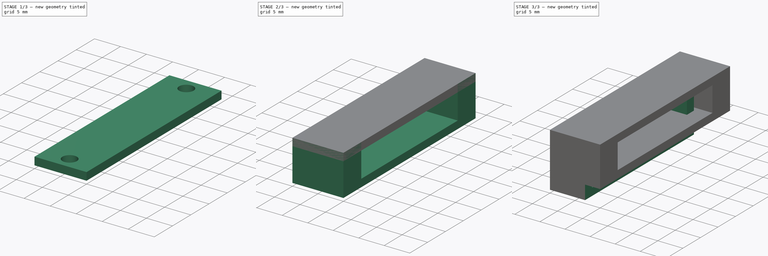
[diagram: build sequence overview — one tinted view per stage of 3, left to right]
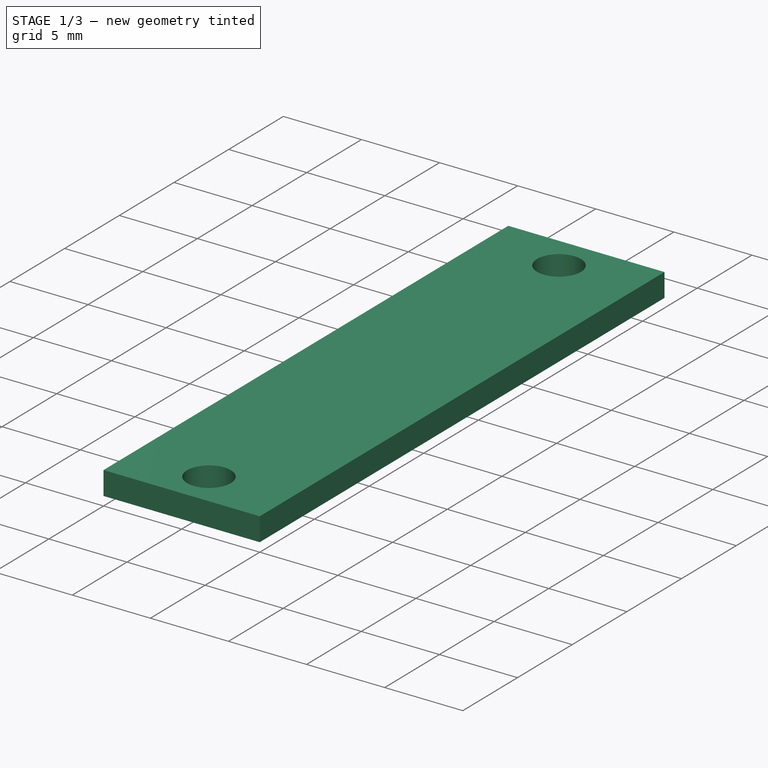
[diagram: stage 1 of 3 — iso view after this stage's code; geometry added in this stage tinted green]
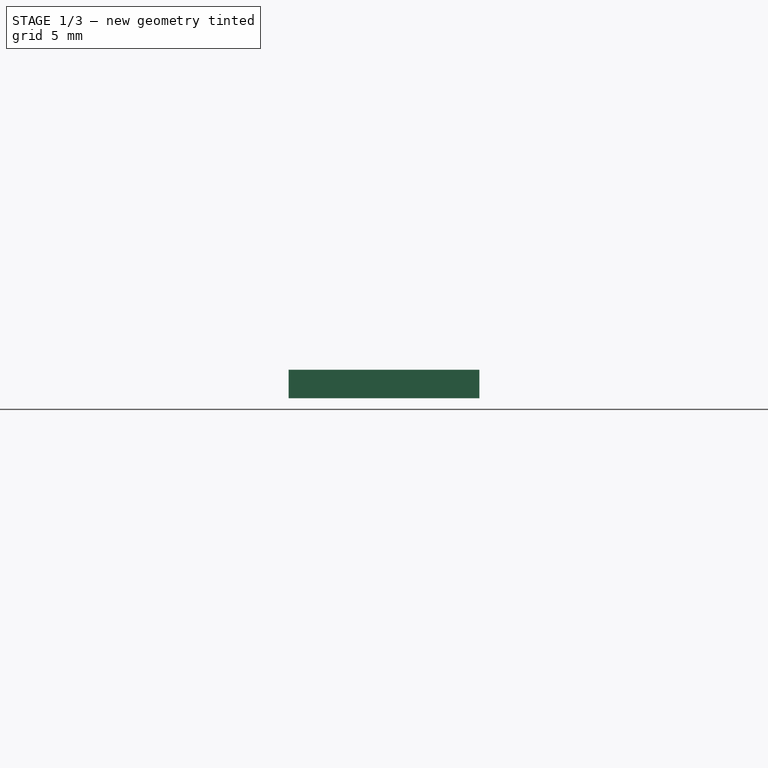
[diagram: stage 1 of 3 — front view after this stage's code; geometry added in this stage tinted green]
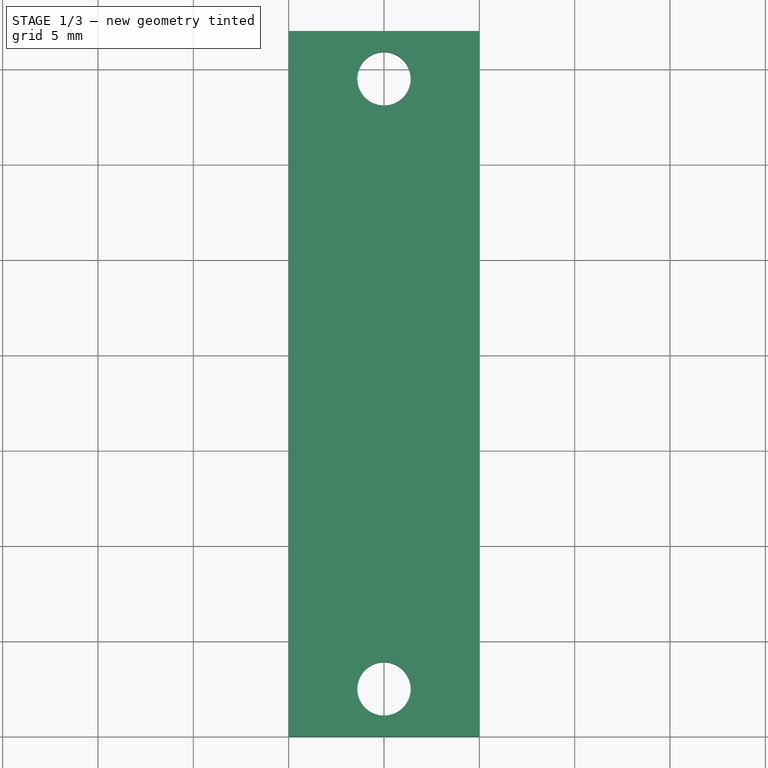
[diagram: stage 1 of 3 — top view after this stage's code; geometry added in this stage tinted green]
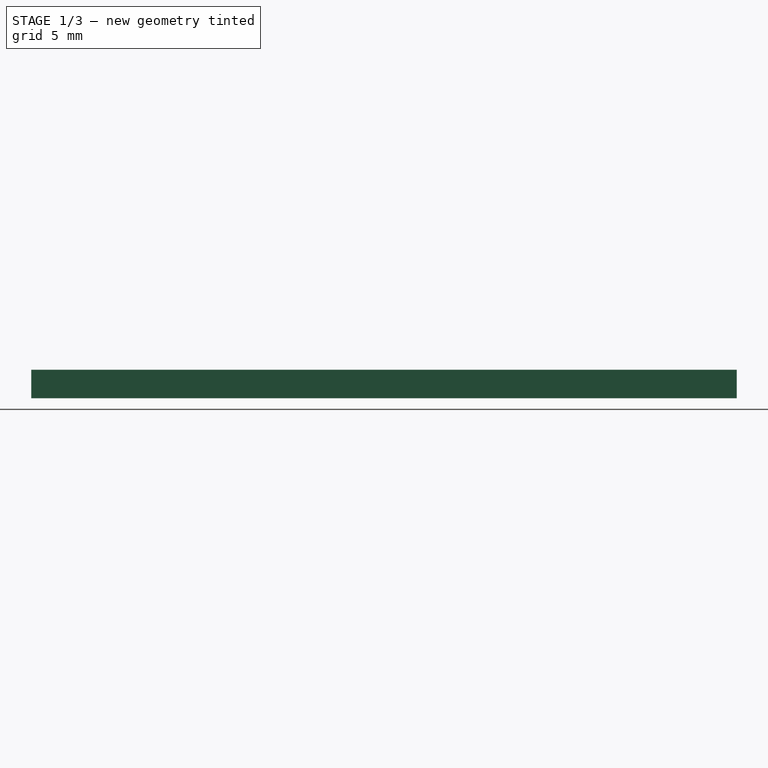
[diagram: stage 1 of 3 — right view after this stage's code; geometry added in this stage tinted green]
FCSTD DOCUMENT  (FreeCAD 0.20R29410 (Git))
Label: heating-controller-integration
License: All rights reserved
LicenseURL: http://en.wikipedia.org/wiki/All_rights_reserved
objects: Part::Feature×22, App::Link×10, Sketcher::SketchObject×8, App::Part×7, PartDesign::Pad×3, PartDesign::Body×3, PartDesign::Pocket×2, PartDesign::CoordinateSystem×1
note: 44 computed .brp shape members not serialized (recipe doc carries the construction recipe); baked Part::Feature solids carry a one-line shape summary decoded from their .brp

FEATURE [PartDesign::Body] Body001  label="Support_PCB"
  Group = -> [Sketch003,Pad001,Sketch004,Pocket]
  Origin = -> Origin014
  Placement = pos=(40.3,-81.25,49.4) rot=(0,0,1;0rad)
  Tip = -> Pocket
FEATURE [Sketcher::SketchObject] Sketch005
  FullyConstrained = true
  MapMode = 5
  Placement = pos=(0,0,0) rot=(0.57735,0.57735,0.57735;2.0944rad)
  Support = -> [YZ_Plane015]
  sketch-geometry (6):
    g0: LineSegment StartX=0 StartY=0 StartZ=0 EndX=5 EndY=0 EndZ=0
    g1: LineSegment StartX=5 StartY=0 StartZ=0 EndX=32 EndY=0 EndZ=0
    g2: LineSegment StartX=32 StartY=0 StartZ=0 EndX=37 EndY=0 EndZ=0
    g3: LineSegment StartX=37 StartY=0 StartZ=0 EndX=37 EndY=-1.5 EndZ=0
    g4: LineSegment StartX=37 StartY=-1.5 StartZ=0 EndX=0 EndY=-1.5 EndZ=0
    g5: LineSegment StartX=0 StartY=-1.5 StartZ=0 EndX=0 EndY=0 EndZ=0
  constraints (17):
    c: Coincident(g-1,g0)
    c: PointOnObject(g0,g-1)
    c: Horizontal(g1)
    c: PointOnObject(g2,g-1)
    c: Coincident(g2,g3)
    c: Vertical(g3)
    c: Coincident(g3,g4)
    c: PointOnObject(g4,g-2)
    c: Horizontal(g4)
    c: Coincident(g4,g5)
    c: Coincident(g5,g0)
    c: Equal(g0,g2)
    c: DistanceX(g0,g0) = 5
    c: DistanceX(g1,g1) = 27
    c: DistanceY(g4,g1) = 1.5
    c: Coincident(g1,g2)
    c: Coincident(g0,g1)
FEATURE [PartDesign::Pad] Pad002
  Direction = (1,-2e-16,3e-16)
  Length = 10
  Length2 = 10
  Placement = pos=(0,0,0) rot=(0.57735,0.57735,0.57735;2.0944rad)
  Profile = -> Sketch005
  ReferenceAxis = -> Sketch005 [N_Axis]
  Type = 0
FEATURE [Sketcher::SketchObject] Sketch006
  ExternalGeometry = -> [Pad002]
  FullyConstrained = true
  MapMode = 5
  Placement = pos=(6e-16,-8e-16,-1.5) rot=(0.707107,0.707107,0;3.14159rad)
  Support = -> [Pad002]
  sketch-geometry (4):
    g0: Circle CenterX=2.5 CenterY=5 CenterZ=0 NormalX=0 NormalY=0 NormalZ=1 AngleXU=0 Radius=1.4
    g1: Circle CenterX=34.5 CenterY=5 CenterZ=0 NormalX=0 NormalY=0 NormalZ=1 AngleXU=0 Radius=1.4
    g2: LineSegment StartX=34.5 StartY=5 StartZ=0 EndX=37 EndY=0 EndZ=0
    g3: LineSegment StartX=34.5 StartY=5 StartZ=0 EndX=37 EndY=10 EndZ=0
  constraints (10):
    c: Horizontal(g0,g1)
    c: Equal(g0,g1)
    c: Diameter(g0) = 2.8
    c: DistanceX(g-1,g0) = 2.5
    c: DistanceX(g1,g-3) = 2.5
    c: Coincident(g2,g1)
    c: Coincident(g2,g-3)
    c: Coincident(g3,g1)
    c: Coincident(g3,g-3)
    c: Equal(g3,g2)
FEATURE [PartDesign::Pocket] Pocket001
  BaseFeature = -> Pad002
  Direction = (-4e-16,6e-16,1)
  Length = 5
  Length2 = 5
  Placement = pos=(0,0,0) rot=(0.57735,0.57735,0.57735;2.0944rad)
  Profile = -> Sketch006
  ReferenceAxis = -> Sketch006 [N_Axis]
  Type = 1
FEATURE [PartDesign::Body] Body002  label="Support_PCB_top"
  Group = -> [Sketch005,Pad002,Sketch006,Pocket001]
  Origin = -> Origin015
  Placement = pos=(40.3,-81.25,38.35) rot=(0,0,1;0rad)
  Tip = -> Pocket001
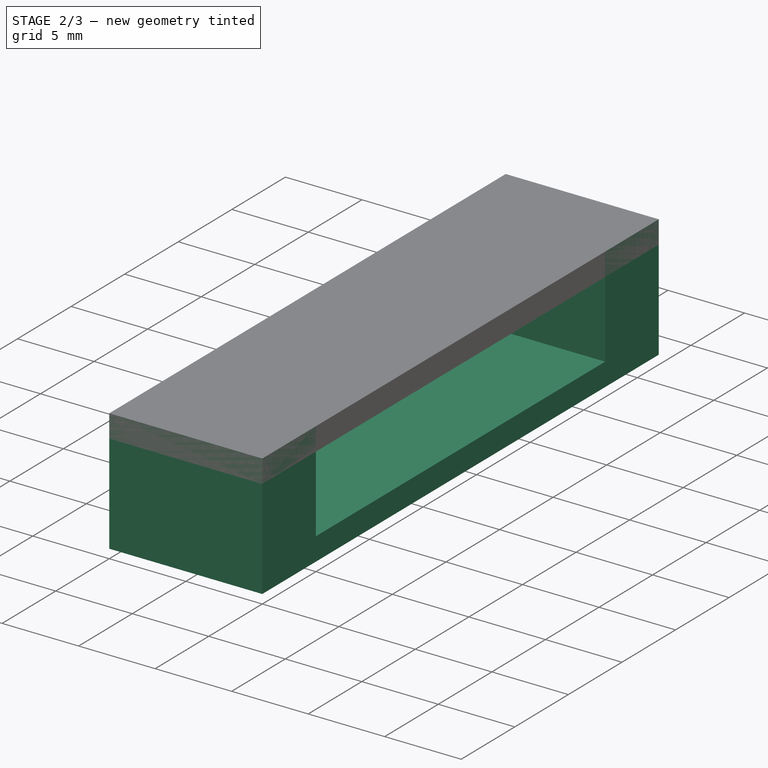
[diagram: stage 2 of 3 — iso view after this stage's code; geometry added in this stage tinted green]
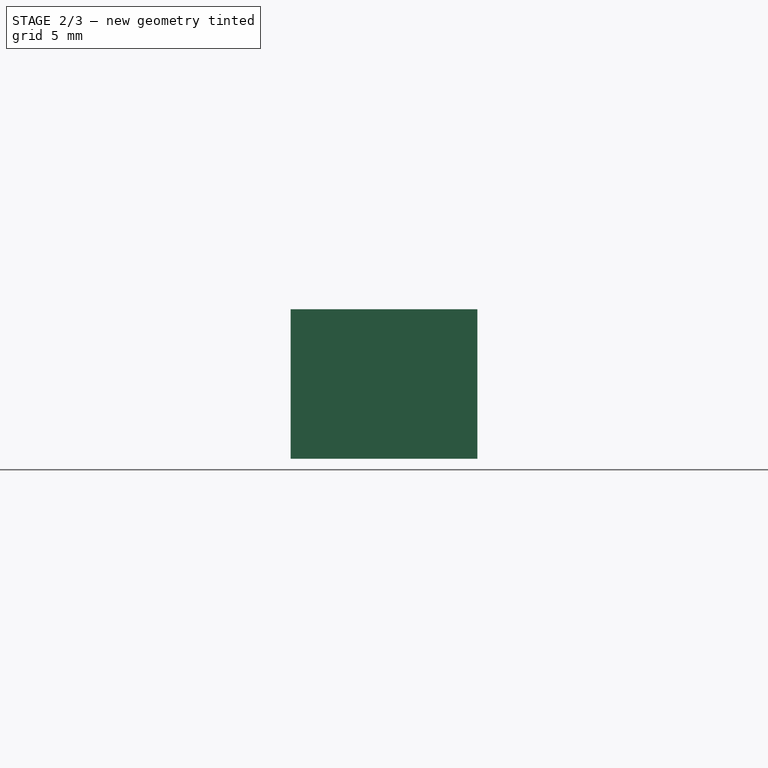
[diagram: stage 2 of 3 — front view after this stage's code; geometry added in this stage tinted green]
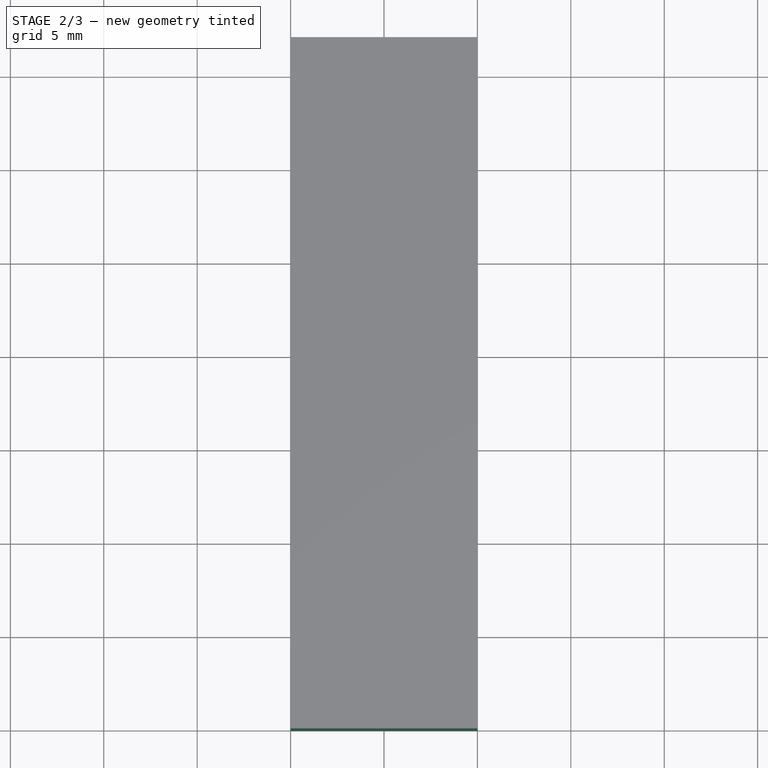
[diagram: stage 2 of 3 — top view after this stage's code; geometry added in this stage tinted green]
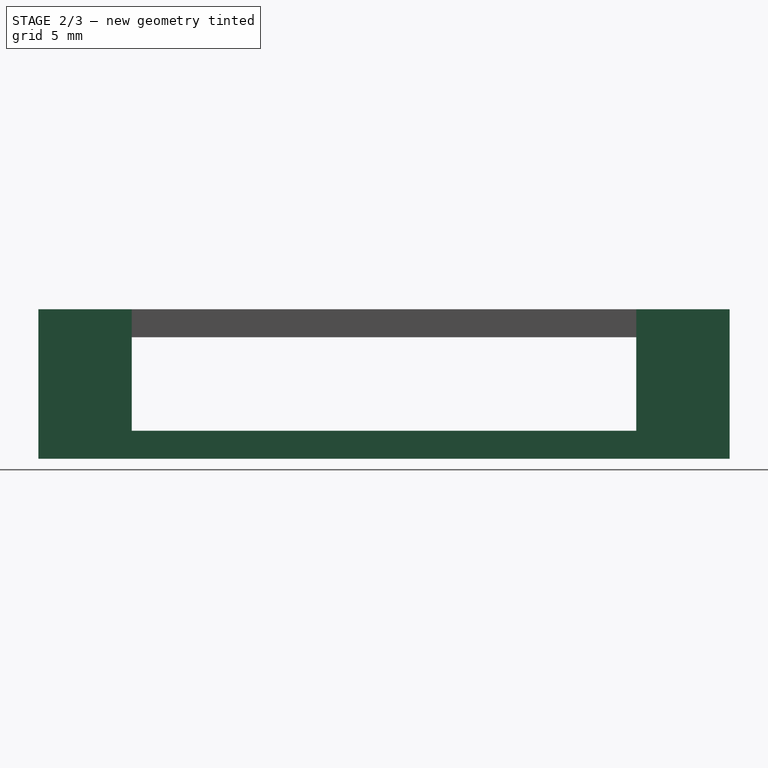
[diagram: stage 2 of 3 — right view after this stage's code; geometry added in this stage tinted green]
FEATURE [PartDesign::Body] Body  label="Support_antenna"
  Group = -> [Sketch002,Pad]
  Origin = -> Origin013
  Placement = pos=(85.4,-77.9,49.4) rot=(0,0,1;0rad)
  Tip = -> Pad
FEATURE [Sketcher::SketchObject] Sketch003
  FullyConstrained = true
  MapMode = 5
  Placement = pos=(0,0,0) rot=(0.57735,0.57735,0.57735;2.0944rad)
  Support = -> [YZ_Plane014]
  sketch-geometry (8):
    g0: LineSegment StartX=0 StartY=0 StartZ=0 EndX=5 EndY=0 EndZ=0
    g1: LineSegment StartX=5 StartY=0 StartZ=0 EndX=5 EndY=-6.5 EndZ=0
    g2: LineSegment StartX=5 StartY=-6.5 StartZ=0 EndX=32 EndY=-6.5 EndZ=0
    g3: LineSegment StartX=32 StartY=-6.5 StartZ=0 EndX=32 EndY=0 EndZ=0
    g4: LineSegment StartX=32 StartY=0 StartZ=0 EndX=37 EndY=0 EndZ=0
    g5: LineSegment StartX=37 StartY=0 StartZ=0 EndX=37 EndY=-8 EndZ=0
    g6: LineSegment StartX=37 StartY=-8 StartZ=0 EndX=0 EndY=-8 EndZ=0
    g7: LineSegment StartX=0 StartY=-8 StartZ=0 EndX=0 EndY=0 EndZ=0
  constraints (23):
    c: Coincident(g-1,g0)
    c: PointOnObject(g0,g-1)
    c: Coincident(g0,g1)
    c: Vertical(g1)
    c: Coincident(g1,g2)
    c: Horizontal(g2)
    c: Coincident(g2,g3)
    c: PointOnObject(g3,g-1)
    c: Vertical(g3)
    c: Coincident(g3,g4)
    c: PointOnObject(g4,g-1)
    c: Coincident(g4,g5)
    c: Vertical(g5)
    c: Coincident(g5,g6)
    c: PointOnObject(g6,g-2)
    c: Horizontal(g6)
    c: Coincident(g6,g7)
    c: Coincident(g7,g0)
    c: Equal(g0,g4)
    c: DistanceX(g0,g0) = 5
    c: DistanceX(g2,g2) = 27
    c: DistanceY(g3,g3) = 6.5
    c: DistanceY(g6,g1) = 1.5
FEATURE [PartDesign::Pad] Pad001
  Direction = (1,-2e-16,3e-16)
  Length = 10
  Length2 = 10
  Placement = pos=(0,0,0) rot=(0.57735,0.57735,0.57735;2.0944rad)
  Profile = -> Sketch003
  ReferenceAxis = -> Sketch003 [N_Axis]
  Type = 0
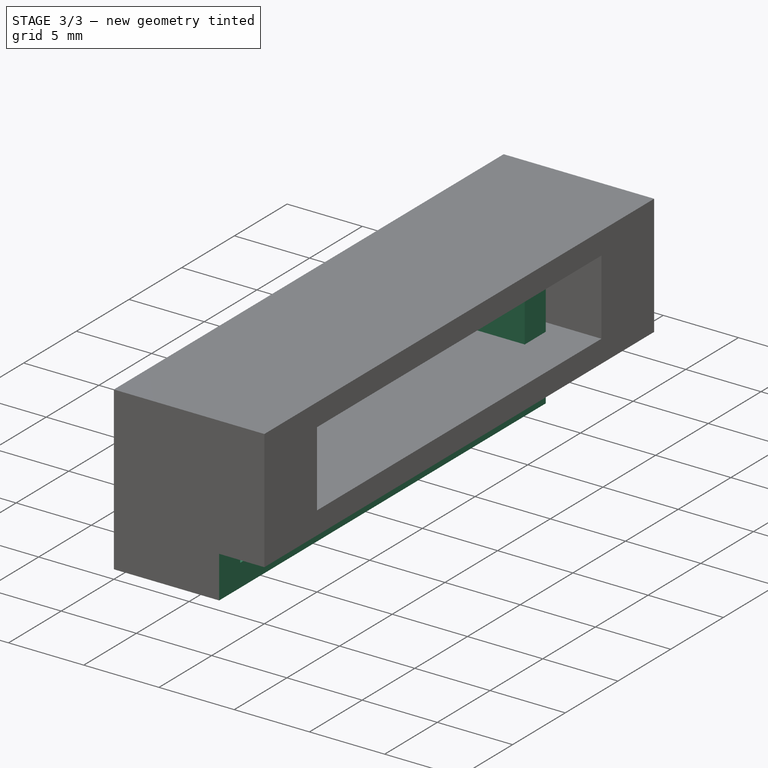
[diagram: stage 3 of 3 — iso view after this stage's code; geometry added in this stage tinted green]
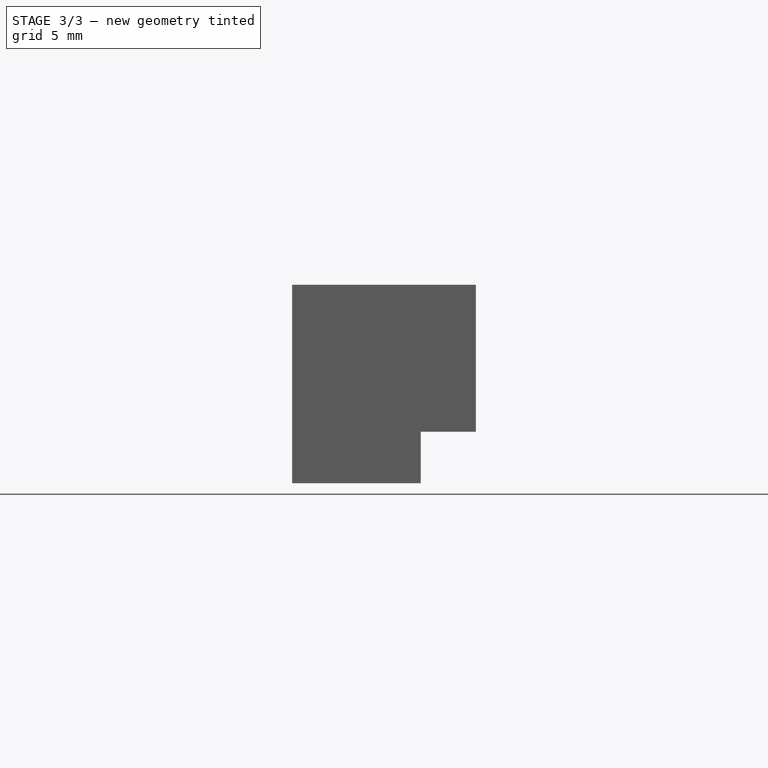
[diagram: stage 3 of 3 — front view after this stage's code; geometry added in this stage tinted green]
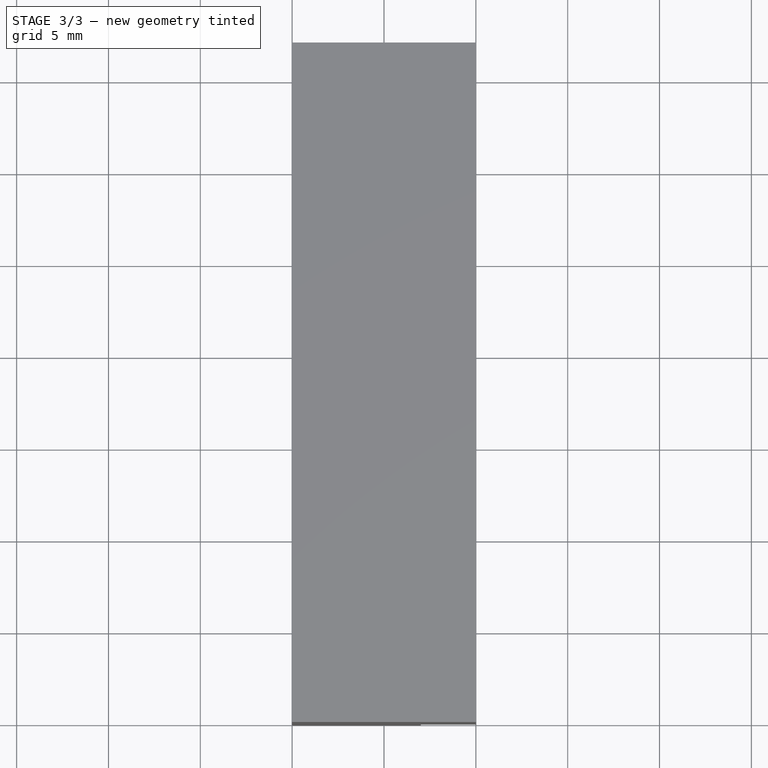
[diagram: stage 3 of 3 — top view after this stage's code; geometry added in this stage tinted green]
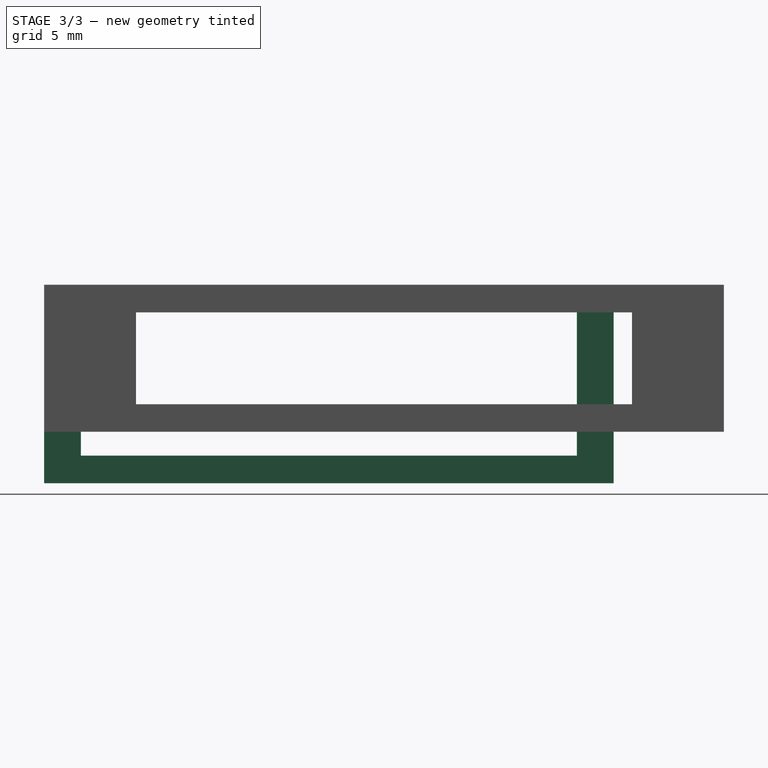
[diagram: stage 3 of 3 — right view after this stage's code; geometry added in this stage tinted green]
FEATURE [Part::Feature] Part__Feature  label="Default"
  shape: bbox 90.2 x 87.6 x 65.4 mm, 880 faces, 4 solids (baked)
FEATURE [App::Part] _e37cdd492b0313c57856d0c2a801cdc20221213_1_148fffv  label="enclosure"
  Group = -> [Part__Feature]
  Origin = -> Origin004
  Placement = pos=(61,-62.6,0) rot=(-0.707107,-0.707107,0;3.14159rad)
  expr: .Placement.Rotation.Angle = 180
FEATURE [Part::Feature] Part__Feature001  label="NFP190B-01A_9_2_1"
  shape: bbox 25.95 x 49.87 x 1.53 mm, 11 faces (baked)
FEATURE [Part::Feature] Part__Feature002  label="S-WATCH_TOUCH-SCREEN_15_1_1"
  shape: bbox 32.02 x 55.03 x 1.401 mm, 32 faces (baked)
FEATURE [App::Part] S_WATCH_20220510_ASM_11_ASM_1_A_ASM  label="S-WATCH_20220510_ASM_11_ASM_1_A_ASM"
  Group = -> [Part__Feature001,Part__Feature002]
  Origin = -> Origin008
FEATURE [App::Part] S_WATCH_20220510_ASM_ASM_1_ASM__ASM  label="S-WATCH_20220510_ASM_ASM_1_ASM__ASM"
  Group = -> [S_WATCH_20220510_ASM_11_ASM_1_A_ASM]
  Origin = -> Origin009
  Placement = pos=(59.6,-62.2,49.6) rot=(0,0,1;1.5708rad)
FEATURE [Part::Feature] Part__Feature003  label="T_DISPLAY_S3"
  Placement = pos=(-17.6,-155.3,44.47) rot=(0.707107,0.707107,0;3.14159rad)
  shape: bbox 61.98 x 26.09 x 7.863 mm, 798 faces (baked)
FEATURE [Sketcher::SketchObject] Sketch  label="Edge.Cuts_Poly_0"
  FullyConstrained = false
  Placement = pos=(0,0,0) rot=(0,0,1;3.14159rad)
  sketch-geometry (6):
    g0: LineSegment StartX=-66.8 StartY=69.1 StartZ=0 EndX=-66.8 EndY=95.411 EndZ=0
    g1: LineSegment StartX=-66.8 StartY=95.411 StartZ=0 EndX=-65.15 EndY=95.411 EndZ=0
    g2: LineSegment StartX=-65.15 StartY=95.411 StartZ=0 EndX=-65.15 EndY=71.1286 EndZ=0
    g3: LineSegment StartX=-65.15 StartY=71.1286 StartZ=0 EndX=-45.4992 EndY=71.1286 EndZ=0
    g4: LineSegment StartX=-45.4992 StartY=71.1286 StartZ=0 EndX=-45.4992 EndY=69.1 EndZ=0
    g5: LineSegment StartX=-45.4992 StartY=69.1 StartZ=0 EndX=-66.8 EndY=69.1 EndZ=0
FEATURE [Sketcher::SketchObject] Sketch001  label="Edge.Cuts_Poly_1"
  FullyConstrained = false
  Placement = pos=(0,0,0) rot=(0,0,1;3.14159rad)
  sketch-geometry (6):
    g0: LineSegment StartX=-44.15 StartY=44.1 StartZ=0 EndX=-44.15 EndY=60.1 EndZ=0
    g1: LineSegment StartX=-44.15 StartY=60.1 StartZ=0 EndX=-42.15 EndY=60.1 EndZ=0
    g2: LineSegment StartX=-42.15 StartY=60.1 StartZ=0 EndX=-42.15 EndY=46.1 EndZ=0
    g3: LineSegment StartX=-42.15 StartY=46.1 StartZ=0 EndX=-23.15 EndY=46.1 EndZ=0
    g4: LineSegment StartX=-23.15 StartY=46.1 StartZ=0 EndX=-23.15 EndY=44.1 EndZ=0
    g5: LineSegment StartX=-23.15 StartY=44.1 StartZ=0 EndX=-44.15 EndY=44.1 EndZ=0
FEATURE [PartDesign::CoordinateSystem] Local_CS_2b62
  AttacherType = Attacher::AttachEngine3D
  MapMode = 2
  Support = -> [X_Axis010]
FEATURE [Part::Feature] Pcb_2b62
  shape: bbox 81.85 x 85.9 x 1.6 mm, 78 faces (baked)
FEATURE [Sketcher::SketchObject] PCB_Sketch_2b62
  FullyConstrained = false
  sketch-geometry (20):
    g0: LineSegment StartX=20.15 StartY=-20.1 StartZ=0 EndX=102 EndY=-20.1 EndZ=0
    g1: LineSegment StartX=102 StartY=-20.1 StartZ=0 EndX=102 EndY=-106 EndZ=0
    g2: LineSegment StartX=102 StartY=-106 StartZ=0 EndX=20.15 EndY=-106 EndZ=0
    g3: LineSegment StartX=20.15 StartY=-106 StartZ=0 EndX=20.15 EndY=-20.1 EndZ=0
    g4: LineSegment StartX=66.8 StartY=-69.1 StartZ=0 EndX=66.8 EndY=-95.411 EndZ=0
    g5: LineSegment StartX=66.8 StartY=-95.411 StartZ=0 EndX=65.15 EndY=-95.411 EndZ=0
    g6: LineSegment StartX=65.15 StartY=-95.411 StartZ=0 EndX=65.15 EndY=-71.1286 EndZ=0
    g7: LineSegment StartX=65.15 StartY=-71.1286 StartZ=0 EndX=45.4992 EndY=-71.1286 EndZ=0
    g8: LineSegment StartX=45.4992 StartY=-71.1286 StartZ=0 EndX=45.4992 EndY=-69.1 EndZ=0
    g9: LineSegment StartX=45.4992 StartY=-69.1 StartZ=0 EndX=66.8 EndY=-69.1 EndZ=0
    g10: LineSegment StartX=44.15 StartY=-44.1 StartZ=0 EndX=44.15 EndY=-60.1 EndZ=0
    g11: LineSegment StartX=44.15 StartY=-60.1 StartZ=0 EndX=42.15 EndY=-60.1 EndZ=0
    g12: LineSegment StartX=42.15 StartY=-60.1 StartZ=0 EndX=42.15 EndY=-46.1 EndZ=0
    g13: LineSegment StartX=42.15 StartY=-46.1 StartZ=0 EndX=23.15 EndY=-46.1 EndZ=0
    g14: LineSegment StartX=23.15 StartY=-46.1 StartZ=0 EndX=23.15 EndY=-44.1 EndZ=0
    g15: LineSegment StartX=23.15 StartY=-44.1 StartZ=0 EndX=44.15 EndY=-44.1 EndZ=0
    g16: Circle CenterX=28 CenterY=-37.7 CenterZ=0 NormalX=0 NormalY=0 NormalZ=1 AngleXU=0 Radius=1.3
    g17: Circle CenterX=28 CenterY=-87.9 CenterZ=0 NormalX=0 NormalY=0 NormalZ=1 AngleXU=0 Radius=1.3
    g18: Circle CenterX=94.2 CenterY=-37.7 CenterZ=0 NormalX=0 NormalY=0 NormalZ=1 AngleXU=0 Radius=1.3
    g19: Circle CenterX=94.2 CenterY=-87.7148 CenterZ=0 NormalX=0 NormalY=0 NormalZ=1 AngleXU=0 Radius=1.3
  constraints (16):
    c: Coincident(g2,g3)
    c: Coincident(g0,g3)
    c: Coincident(g13,g14)
    c: Coincident(g14,g15)
    c: Coincident(g11,g12)
    c: Coincident(g12,g13)
    c: Coincident(g10,g11)
    c: Coincident(g10,g15)
    c: Coincident(g7,g8)
    c: Coincident(g8,g9)
    c: Coincident(g5,g6)
    c: Coincident(g6,g7)
    c: Coincident(g4,g5)
    c: Coincident(g4,g9)
    c: Coincident(g1,g2)
    c: Coincident(g0,g1)
FEATURE [App::Part] Board_Geoms_2b62
  Group = -> [Pcb_2b62,PCB_Sketch_2b62]
  Origin = -> Origin
FEATURE [Part::Feature] Shape  label="R6_R_0603_1608Metric_a486fa5abdc1"
  Placement = pos=(47.675,-28.95,0) rot=(0,0,1;0rad)
  shape: bbox 1.6 x 0.8 x 0.45 mm, 26 faces (baked)
FEATURE [Part::Feature] Shape001  label="PS1_Pad001_cc960fdde001"
  Placement = pos=(35.9742,-47.41,0) rot=(0,0,1;0rad)
  shape: bbox 25.4 x 25.4 x 21.7 mm, 18 faces (baked)
FEATURE [Part::Feature] Shape002  label="C3_C_Radial_D100mm_H125mm_P500mm_71014cd09946"
  Placement = pos=(67.9782,-59.2414,0) rot=(0,0,-1;1.5708rad)
  shape: bbox 13.66 x 12.88 x 14.5 mm, 32 faces (baked)
FEATURE [App::Link] R6_R_0603_1608Metric_a486fa5abdc1_ln_  label="R9_R_0603_1608Metric_5393dd63167e"
  LinkPlacement = pos=(93.4,-59.1,0) rot=(0,0,1;3.14159rad)
  LinkedObject = -> Shape
  Placement = pos=(93.4,-59.1,0) rot=(0,0,1;3.14159rad)
FEATURE [App::Link] R6_R_0603_1608Metric_a486fa5abdc1_ln_001  label="R4_R_0603_1608Metric_e644c34d807d"
  LinkPlacement = pos=(47.675,-32.05,0) rot=(0,0,1;0rad)
  LinkedObject = -> Shape
  Placement = pos=(47.675,-32.05,0) rot=(0,0,1;0rad)
FEATURE [App::Link] R6_R_0603_1608Metric_a486fa5abdc1_ln_002  label="R7_R_0603_1608Metric_b2ae3c32dab1"
  LinkPlacement = pos=(85.775,-61,0) rot=(0,0,1;3.14159rad)
  LinkedObject = -> Shape
  Placement = pos=(85.775,-61,0) rot=(0,0,1;3.14159rad)
FEATURE [Part::Feature] Shape003  label="RV1_RV_Disc_D12mm_W75mm_P75mm_a3a09b8d229c"
  Placement = pos=(44.4486,-79.6564,0) rot=(0,0,1;3.14159rad)
  shape: bbox 12 x 7.5 x 15.03 mm, 11 faces (baked)
FEATURE [App::Link] R6_R_0603_1608Metric_a486fa5abdc1_ln_003  label="R10_R_0603_1608Metric_937b6face6c1"
  LinkPlacement = pos=(78.15,-71.1,0) rot=(0,0,-1;1.5708rad)
  LinkedObject = -> Shape
  Placement = pos=(78.15,-71.1,0) rot=(0,0,-1;1.5708rad)
FEATURE [Part::Feature] Shape004  label="J2_PinHeader_1x12_P254mm_Vertical_862bfcde2853"
  Placement = pos=(46.83,-35.7,0) rot=(0,0,1;1.5708rad)
  shape: bbox 30.48 x 2.54 x 11.54 mm, 292 faces (baked)
FEATURE [Part::Feature] Shape005  label="J3_TerminalBlock_Phoenix_MKDS_3_7_508_1x07_P508mm_Horizontal_bc2887fb8af6"
  Placement = pos=(25.72,-100.55,0) rot=(0,0,1;0rad)
  shape: bbox 36.13 x 11.2 x 23 mm, 305 faces (baked)
FEATURE [Part::Feature] Shape006  label="D3_LED_0805_2012Metric_4455ae678b20"
  Placement = pos=(95.15,-62.0375,0) rot=(0,0,1;1.5708rad)
  shape: bbox 1.25 x 2 x 1.1 mm, 50 faces (baked)
FEATURE [App::Link] R6_R_0603_1608Metric_a486fa5abdc1_ln_004  label="R8_R_0603_1608Metric_9ddeef94934f"
  LinkPlacement = pos=(78.15,-65.925,0) rot=(0,0,-1;1.5708rad)
  LinkedObject = -> Shape
  Placement = pos=(78.15,-65.925,0) rot=(0,0,-1;1.5708rad)
FEATURE [Part::Feature] Shape007  label="C1_C_1206_3216Metric_184f41baba65"
  Placement = pos=(75.0648,-78.7232,0) rot=(0,0,-1;1.5708rad)
  shape: bbox 1.6 x 3.2 x 1.6 mm, 28 faces (baked)
FEATURE [Part::Feature] Shape008  label="D1_D_SOD_323_aa465fcb5bed"
  Placement = pos=(74.75,-40.95,0) rot=(0,0,-1;1.5708rad)
  shape: bbox 1.25 x 2.5 x 1.1 mm, 67 faces (baked)
FEATURE [Part::Feature] Shape009  label="K1_Relay_SPDT_Finder_32.21-x000_b01d047eb10a"
  Placement = pos=(72.5248,-84.4425,0) rot=(0,0,1;3.14159rad)
  shape: bbox 20 x 10 x 13.7 mm, 46 faces (baked)
FEATURE [App::Link] R6_R_0603_1608Metric_a486fa5abdc1_ln_005  label="R1_R_0603_1608Metric_76f05f706824"
  LinkPlacement = pos=(47.625,-38.95,0) rot=(0,0,1;0rad)
  LinkedObject = -> Shape
  Placement = pos=(47.625,-38.95,0) rot=(0,0,1;0rad)
FEATURE [App::Link] D1_D_SOD_323_aa465fcb5bed_ln_  label="D4_D_SOD_323_02240b77c34d"
  LinkPlacement = pos=(77.2,-86.85,0) rot=(0,0,-1;1.5708rad)
  LinkedObject = -> Shape008
  Placement = pos=(77.2,-86.85,0) rot=(0,0,-1;1.5708rad)
FEATURE [Part::Feature] Shape010  label="J4_PinHeader_1x02_P254mm_Vertical_cb93ea696dab"
  Placement = pos=(90,-63.6,0) rot=(0,0,1;3.14159rad)
  shape: bbox 2.54 x 5.08 x 11.54 mm, 52 faces (baked)
FEATURE [Part::Feature] Shape011  label="C2_C_0603_1608Metric_af71e0b8cedf"
  Placement = pos=(64.5492,-49.9958,0) rot=(0,0,1;0rad)
  shape: bbox 1.6 x 0.8 x 0.8 mm, 28 faces (baked)
FEATURE [Part::Feature] Shape012  label="J1_TerminalBlock_Phoenix_MKDS_3_4_508_1x04_P508mm_Horizontal_3f8e2a9aea9a"
  Placement = pos=(80.75,-100.55,0) rot=(0,0,1;0rad)
  shape: bbox 20.89 x 11.2 x 23 mm, 182 faces (baked)
FEATURE [App::Link] D1_D_SOD_323_aa465fcb5bed_ln_001  label="D2_D_SOD_323_901899c47477"
  LinkPlacement = pos=(64.6,-54.2884,0) rot=(0,0,1;0rad)
  LinkedObject = -> Shape008
  Placement = pos=(64.6,-54.2884,0) rot=(0,0,1;0rad)
FEATURE [Part::Feature] Shape013  label="R5_R_Axial_DIN0614_L143mm_D57mm_P1524mm_Horizontal_10cb85c8e1dd"
  Placement = pos=(29.15,-65.1,0) rot=(0,0,1;1.5708rad)
  shape: bbox 6.17 x 16.3 x 8.935 mm, 15 faces (baked)
FEATURE [App::Link] RV1_RV_Disc_D12mm_W75mm_P75mm_a3a09b8d229c_ln_  label="RV2_RV_Disc_D12mm_W75mm_P75mm_5fde2190ae9c"
  LinkPlacement = pos=(24.1216,-70.805,0) rot=(0,0,1;0rad)
  LinkedObject = -> Shape003
  Placement = pos=(24.1216,-70.805,0) rot=(0,0,1;0rad)
FEATURE [Part::Feature] Shape014  label="R3_R_Axial_DIN0204_L36mm_D16mm_P508mm_Horizontal_2cfa1f32dbe2"
  Placement = pos=(51.9508,-78.0628,0) rot=(0,0,1;0rad)
  shape: bbox 5.745 x 1.732 x 4.666 mm, 15 faces (baked)
FEATURE [Part::Feature] Shape015  label="U1_DIP-6_W7.62mm_9f37de575c71"
  Placement = pos=(62.4664,-74.7862,0) rot=(0,0,1;0rad)
  shape: bbox 7.874 x 7.05 x 6.98 mm, 114 faces (baked)
FEATURE [Part::Feature] Shape016  label="Q1_SOT_23_480f1ca98e1c"
  Placement = pos=(83.15,-88.1625,0) rot=(0,0,-1;1.5708rad)
  shape: bbox 3 x 2.5 x 1.2 mm, 76 faces (baked)
FEATURE [App::Link] R3_R_Axial_DIN0204_L36mm_D16mm_P508mm_Horizontal_2cfa1f32dbe2_ln_  label="R2_R_Axial_DIN0204_L36mm_D16mm_P508mm_Horizontal_2b026d924de6"
  LinkPlacement = pos=(48.9028,-74.6084,0) rot=(0,0,1;0rad)
  LinkedObject = -> Shape014
  Placement = pos=(48.9028,-74.6084,0) rot=(0,0,1;0rad)
FEATURE [App::Part] Top_2b62
  Group = -> [Shape,Shape001,Shape002,R6_R_0603_1608Metric_a486fa5abdc1_ln_,R6_R_0603_1608Metric_a486fa5abdc1_ln_001,R6_R_0603_1608Metric_a486fa5abdc1_ln_002,Shape003,R6_R_0603_1608Metric_a486fa5abdc1_ln_003,Shape004,Shape005,Shape006,R6_R_0603_1608Metric_a486fa5abdc1_ln_004,Shape007,Shape008,Shape009,R6_R_0603_1608Metric_a486fa5abdc1_ln_005,D1_D_SOD_323_aa465fcb5bed_ln_,Shape010,Shape011,Shape012,+7 more]
  Origin = -> Origin012
FEATURE [App::Part] Step_Models_2b62
  Group = -> [Top_2b62]
  Origin = -> Origin011
FEATURE [App::Part] Board_2b62  label="heating-controller"
  Group = -> [Local_CS_2b62,Board_Geoms_2b62,Step_Models_2b62]
  Origin = -> Origin010
FEATURE [Sketcher::SketchObject] Sketch002
  FullyConstrained = true
  MapMode = 5
  Placement = pos=(0,0,0) rot=(0.57735,0.57735,0.57735;2.0944rad)
  Support = -> [YZ_Plane013]
  sketch-geometry (12):
    g0: LineSegment StartX=0 StartY=0 StartZ=0 EndX=2 EndY=0 EndZ=0
    g1: LineSegment StartX=2 StartY=0 StartZ=0 EndX=2 EndY=-6.5 EndZ=0
    g2: LineSegment StartX=2 StartY=-6.5 StartZ=0 EndX=29 EndY=-6.5 EndZ=0
    g3: LineSegment StartX=29 StartY=-6.5 StartZ=0 EndX=29 EndY=0 EndZ=0
    g4: LineSegment StartX=29 StartY=0 StartZ=0 EndX=31 EndY=0 EndZ=0
    g5: LineSegment StartX=31 StartY=0 StartZ=0 EndX=31 EndY=-10.8 EndZ=0
    g6: LineSegment StartX=31 StartY=-10.8 StartZ=0 EndX=0 EndY=-10.8 EndZ=0
    g7: LineSegment StartX=0 StartY=-10.8 StartZ=0 EndX=0 EndY=0 EndZ=0
    g8: LineSegment StartX=2 StartY=-8 StartZ=0 EndX=29 EndY=-8 EndZ=0
    g9: LineSegment StartX=29 StartY=-8 StartZ=0 EndX=29 EndY=-9.3 EndZ=0
    g10: LineSegment StartX=29 StartY=-9.3 StartZ=0 EndX=2 EndY=-9.3 EndZ=0
    g11: LineSegment StartX=2 StartY=-9.3 StartZ=0 EndX=2 EndY=-8 EndZ=0
  constraints (35):
    c: Coincident(g-1,g0)
    c: PointOnObject(g0,g-1)
    c: Coincident(g0,g1)
    c: Vertical(g1)
    c: Coincident(g1,g2)
    c: Horizontal(g2)
    c: Coincident(g2,g3)
    c: PointOnObject(g3,g-1)
    c: Vertical(g3)
    c: Coincident(g3,g4)
    c: PointOnObject(g4,g-1)
    c: Coincident(g4,g5)
    c: Vertical(g5)
    c: Coincident(g5,g6)
    c: PointOnObject(g6,g-2)
    c: Horizontal(g6)
    c: Coincident(g6,g7)
    c: Coincident(g7,g0)
    c: Equal(g0,g4)
    c: DistanceX(g0,g0) = 2
    c: DistanceX(g2,g2) = 27
    c: DistanceY(g3,g3) = 6.5
    c: Coincident(g8,g9)
    c: Coincident(g9,g10)
    c: Coincident(g10,g11)
    c: Coincident(g11,g8)
    c: Horizontal(g8)
    c: Horizontal(g10)
    c: Vertical(g9)
    c: Vertical(g11)
    c: Vertical(g8,g2)
    c: Vertical(g8,g1)
    c: DistanceY(g9,g9) = 1.3
    c: DistanceY(g6,g10) = 1.5
    c: DistanceY(g8,g1) = 1.5
FEATURE [PartDesign::Pad] Pad
  Direction = (1,-2e-16,3e-16)
  Length = 7
  Length2 = 10
  Placement = pos=(0,0,0) rot=(0.57735,0.57735,0.57735;2.0944rad)
  Profile = -> Sketch002
  ReferenceAxis = -> Sketch002 [N_Axis]
  Type = 0
FEATURE [Sketcher::SketchObject] Sketch004
  ExternalGeometry = -> [Pad001]
  FullyConstrained = true
  MapMode = 5
  Placement = pos=(3.1e-15,-4.4e-15,-8) rot=(0.707107,0.707107,0;3.14159rad)
  Support = -> [Pad001]
  sketch-geometry (4):
    g0: Circle CenterX=2.5 CenterY=5 CenterZ=0 NormalX=0 NormalY=0 NormalZ=1 AngleXU=0 Radius=1.25
    g1: Circle CenterX=34.5 CenterY=5 CenterZ=0 NormalX=0 NormalY=0 NormalZ=1 AngleXU=0 Radius=1.25
    g2: LineSegment StartX=34.5 StartY=5 StartZ=0 EndX=37 EndY=9e-16 EndZ=0
    g3: LineSegment StartX=34.5 StartY=5 StartZ=0 EndX=37 EndY=10 EndZ=0
  constraints (10):
    c: Horizontal(g0,g1)
    c: Equal(g0,g1)
    c: Diameter(g0) = 2.5
    c: DistanceX(g-1,g0) = 2.5
    c: DistanceX(g1,g-3) = 2.5
    c: Coincident(g2,g1)
    c: Coincident(g2,g-3)
    c: Coincident(g3,g1)
    c: Coincident(g3,g-3)
    c: Equal(g3,g2)
FEATURE [PartDesign::Pocket] Pocket
  BaseFeature = -> Pad001
  Direction = (-4e-16,6e-16,1)
  Length = 4
  Length2 = 5
  Placement = pos=(0,0,0) rot=(0.57735,0.57735,0.57735;2.0944rad)
  Profile = -> Sketch004
  ReferenceAxis = -> Sketch004 [N_Axis]
  Type = 0
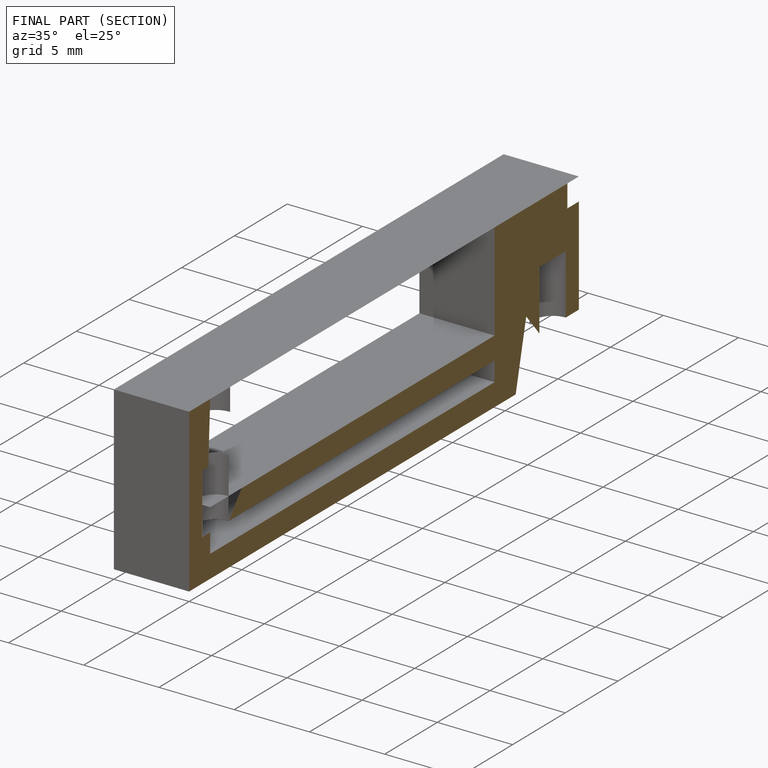
[diagram: finished part — half-section view (interior)]
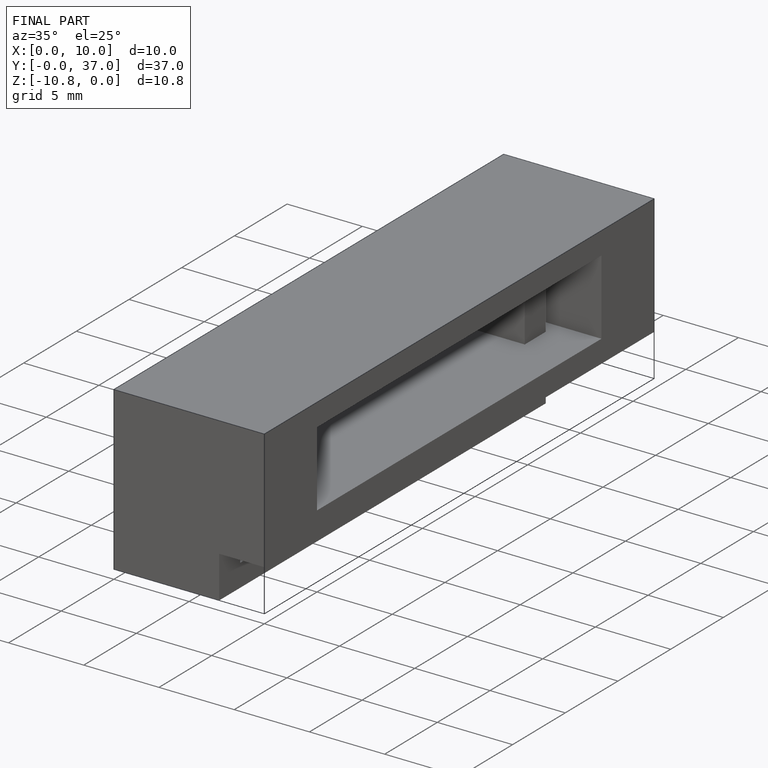
[diagram: finished part — iso view with bounding-box wireframe]
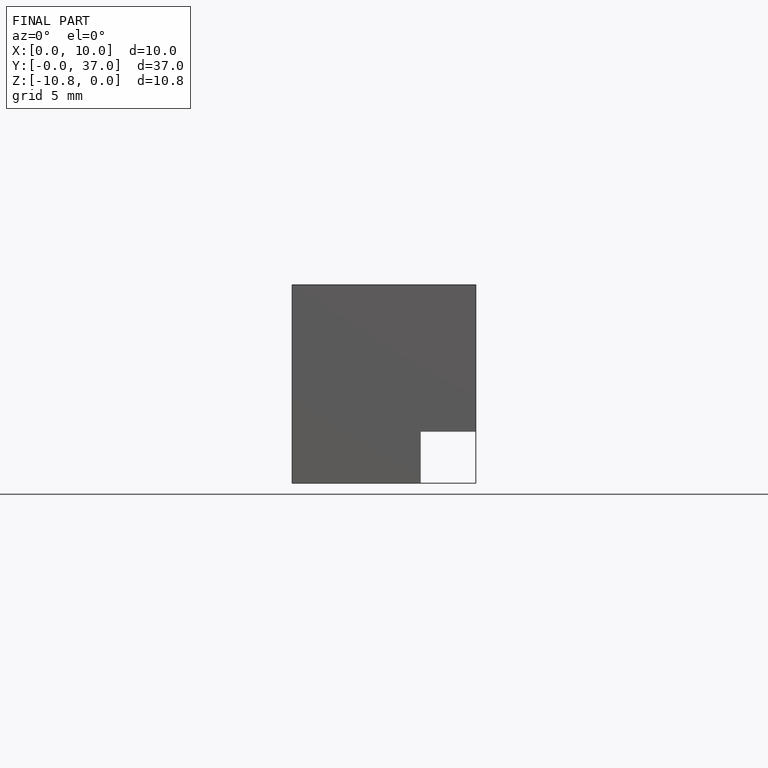
[diagram: finished part — front view with bounding-box wireframe]
